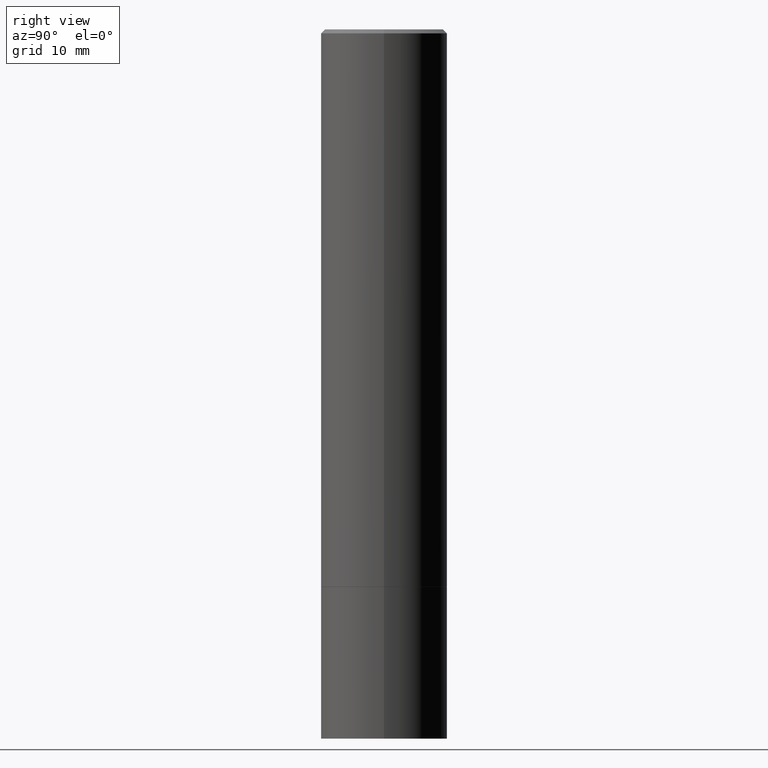
[diagram: clean part render]
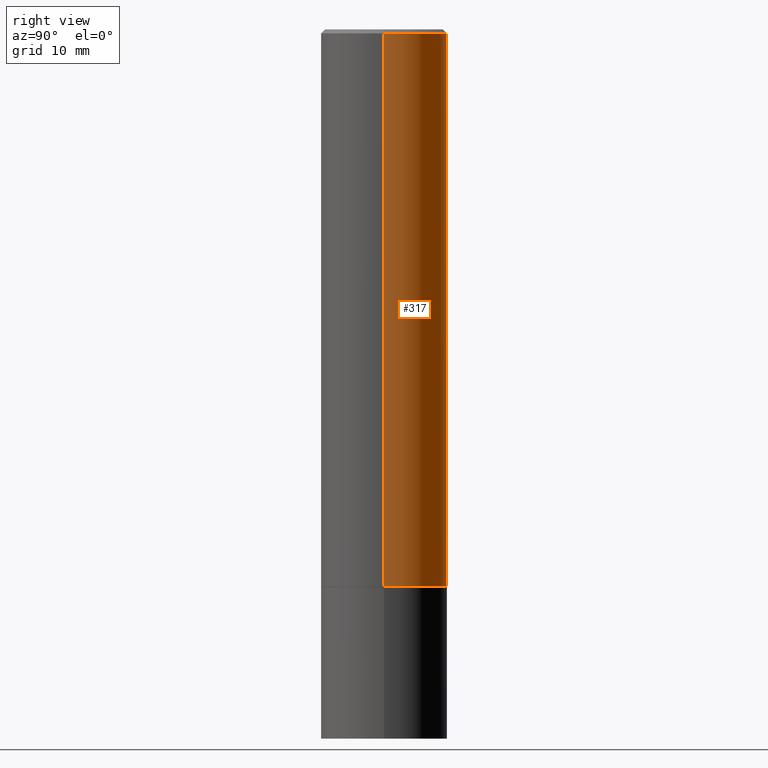
[diagram: same view with one face highlighted and labeled with its STEP entity id]
A machine part, right view. The second image highlights one B-rep face of the part: STEP entity #317.
In plain terms, the highlighted cylindrical surface (partial cylindrical patch) has radius 7.9375 mm, axis along (-0, 0, 1).
Its self-contained STEP definition (entity closure, byte-faithful):
#15 = VERTEX_POINT ( 'NONE', #33 ) ;
#28 = LINE ( 'NONE', #311, #279 ) ;
#29 = ORIENTED_EDGE ( 'NONE', *, *, #232, .T. ) ;
#32 = EDGE_CURVE ( 'NONE', #94, #15, #346, .T. ) ;
#33 = CARTESIAN_POINT ( 'NONE',  ( -0.3124999999999996114, 2.112346210000092288E-15, -0.02000000000000008715 ) ) ;
#35 = VERTEX_POINT ( 'NONE', #152 ) ;
#38 = VERTEX_POINT ( 'NONE', #142 ) ;
#56 = VECTOR ( 'NONE', #213, 39.37007874015748143 ) ;
#65 = DIRECTION ( 'NONE',  ( 1.000000000000000000, -6.982962677686265133E-15, 4.876176775795935232E-29 ) ) ;
#70 = ORIENTED_EDGE ( 'NONE', *, *, #343, .F. ) ;
#94 = VERTEX_POINT ( 'NONE', #257 ) ;
#97 = CYLINDRICAL_SURFACE ( 'NONE', #322, 0.3124999999999998335 ) ;
#101 = CARTESIAN_POINT ( 'NONE',  ( -0.3124999999999998335, 2.220446049250311898E-15, -1.537167215704657111E-29 ) ) ;
#102 = EDGE_CURVE ( 'NONE', #38, #15, #353, .T. ) ;
#106 = CIRCLE ( 'NONE', #115, 0.3125000000000000000 ) ;
#115 = AXIS2_PLACEMENT_3D ( 'NONE', #300, #274, #132 ) ;
#122 = EDGE_LOOP ( 'NONE', ( #29, #150, #351, #70 ) ) ;
#132 = DIRECTION ( 'NONE',  ( 1.000000000000000000, -6.982962677686269077E-15, 0.000000000000000000 ) ) ;
#134 = DIRECTION ( 'NONE',  ( -2.445468806185136597E-29, 3.491481338843145583E-15, 1.000000000000000000 ) ) ;
#142 = CARTESIAN_POINT ( 'NONE',  ( 0.3124999999999996114, -2.213735251080464150E-15, -0.02000000000000008715 ) ) ;
#150 = ORIENTED_EDGE ( 'NONE', *, *, #32, .T. ) ;
#152 = CARTESIAN_POINT ( 'NONE',  ( 0.3125000000000000000, -1.178025803725676835E-14, -2.749000000000000554 ) ) ;
#174 = DIRECTION ( 'NONE',  ( -2.445468806185136877E-29, 3.491481338843145188E-15, 1.000000000000000000 ) ) ;
#209 = CARTESIAN_POINT ( 'NONE',  ( 0.000000000000000000, 0.000000000000000000, 0.000000000000000000 ) ) ;
#213 = DIRECTION ( 'NONE',  ( -2.445468806185136877E-29, 3.491481338843145188E-15, 1.000000000000000000 ) ) ;
#231 = CARTESIAN_POINT ( 'NONE',  ( 4.890937612370294178E-31, -6.982962677686321191E-17, -0.02000000000000008715 ) ) ;
#232 = EDGE_CURVE ( 'NONE', #35, #94, #106, .T. ) ;
#236 = FACE_OUTER_BOUND ( 'NONE', #122, .T. ) ;
#249 = AXIS2_PLACEMENT_3D ( 'NONE', #231, #134, #329 ) ;
#257 = CARTESIAN_POINT ( 'NONE',  ( -0.3125000000000000000, -2.613509864378020417E-15, -2.749000000000000554 ) ) ;
#274 = DIRECTION ( 'NONE',  ( -2.445468806185136597E-29, 3.491481338843145583E-15, 1.000000000000000000 ) ) ;
#279 = VECTOR ( 'NONE', #174, 39.37007874015748143 ) ;
#300 = CARTESIAN_POINT ( 'NONE',  ( 6.722593748202942280E-29, -9.598082200479810007E-15, -2.749000000000000554 ) ) ;
#311 = CARTESIAN_POINT ( 'NONE',  ( 0.3124999999999998335, -2.182175836776956769E-15, 1.523805242436228954E-29 ) ) ;
#316 = DIRECTION ( 'NONE',  ( -2.445468806185136597E-29, 3.491481338843145583E-15, 1.000000000000000000 ) ) ;
#317 = ADVANCED_FACE ( 'NONE', ( #236 ), #97, .T. ) ;
#322 = AXIS2_PLACEMENT_3D ( 'NONE', #209, #316, #65 ) ;
#329 = DIRECTION ( 'NONE',  ( 1.000000000000000000, -6.982962677686265133E-15, 0.000000000000000000 ) ) ;
#343 = EDGE_CURVE ( 'NONE', #35, #38, #28, .T. ) ;
#346 = LINE ( 'NONE', #101, #56 ) ;
#351 = ORIENTED_EDGE ( 'NONE', *, *, #102, .F. ) ;
#353 = CIRCLE ( 'NONE', #249, 0.3124999999999996114 ) ;